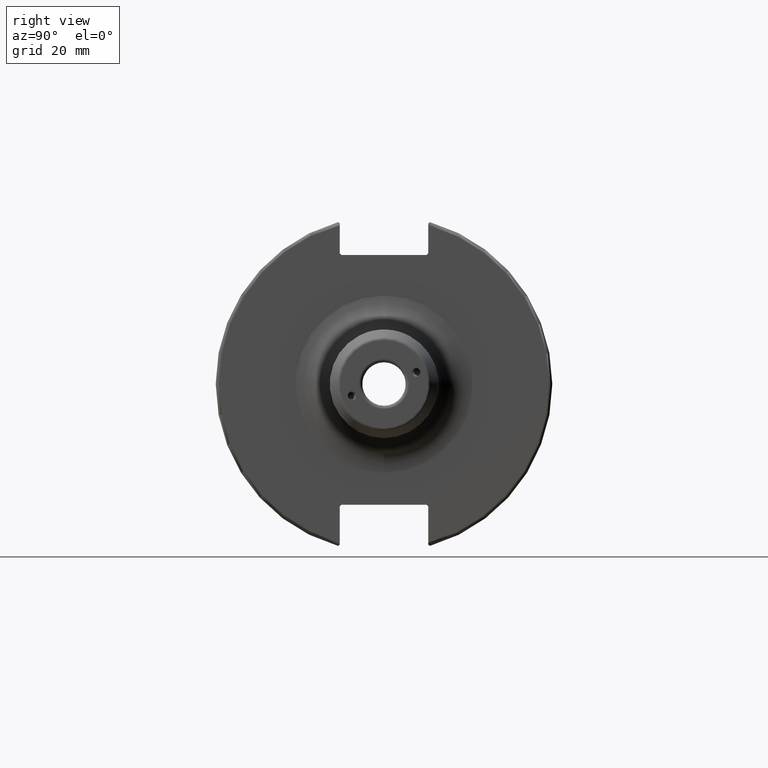
[diagram: clean part render]
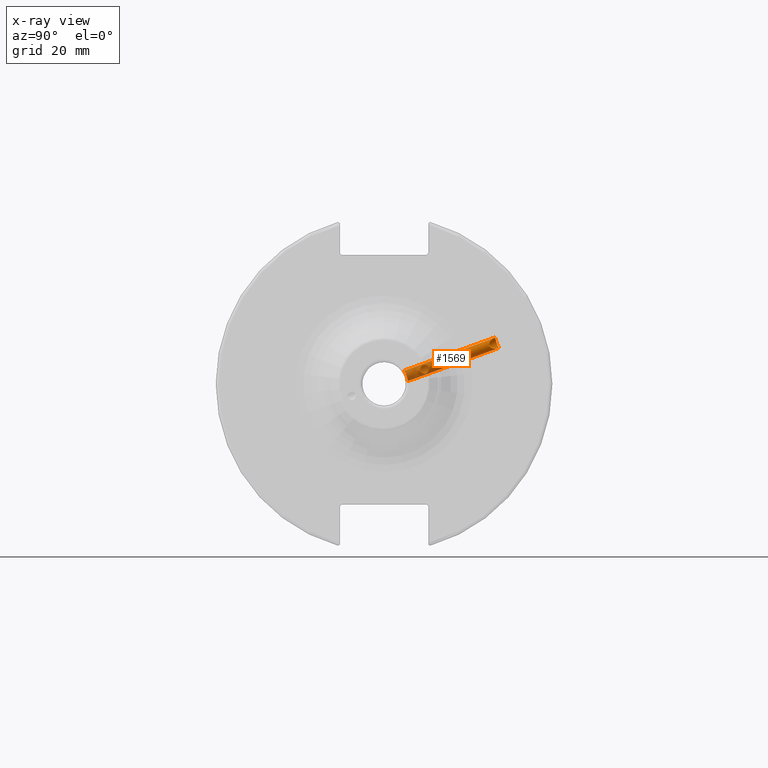
[diagram: x-ray — body ghosted, one internal face saturated and labeled with its STEP entity id]
A machine part, right view, then the same camera in x-ray: the body is ghosted and one INTERNAL B-rep face — a face not visible from any outside direction — is saturated and labeled: STEP entity #1569.
In plain terms, the highlighted cylindrical surface (bore or boss wall) has radius 1.621 mm, axis along (-0, 0.9397, 0.342).
Its self-contained STEP definition (entity closure, byte-faithful):
#68=FACE_BOUND('',#324,.T.);
#222=FACE_OUTER_BOUND('',#323,.T.);
#323=EDGE_LOOP('',(#1203,#1204,#1205,#1206,#1207,#1208));
#324=EDGE_LOOP('',(#1209,#1210));
#394=B_SPLINE_CURVE_WITH_KNOTS('',3,(#2313,#2314,#2315,#2316,#2317,#2318,
#2319,#2320,#2321,#2322,#2323,#2324,#2325,#2326,#2327,#2328,#2329,#2330,
#2331,#2332,#2333,#2334,#2335,#2336,#2337,#2338,#2339,#2340,#2341,#2342,
#2343,#2344),.UNSPECIFIED.,.F.,.F.,(4,2,2,2,2,2,2,2,2,2,2,2,2,2,2,4),(0.,
0.0251596441036339,0.0503192882072677,0.100638576414535,0.149541850116324,
0.198445123818113,0.247348397519902,0.296251671221691,0.346570959428959,
0.371730603532593,0.396890247636226,0.421301291589503,0.445712335542779,
0.494534423449331,0.543060034986694,0.549562323552133),.UNSPECIFIED.);
#395=B_SPLINE_CURVE_WITH_KNOTS('',3,(#2345,#2346,#2347,#2348,#2349,#2350,
#2351,#2352,#2353,#2354,#2355,#2356,#2357,#2358),.UNSPECIFIED.,.F.,.F.,
(4,2,2,2,2,2,4),(0.549562323552133,0.591585646524056,0.640111258061419,
0.688636869598782,0.737458957505335,0.761870001458611,0.786281045411887),
 .UNSPECIFIED.);
#403=B_SPLINE_CURVE_WITH_KNOTS('',3,(#2572,#2573,#2574,#2575,#2576,#2577,
#2578,#2579,#2580,#2581,#2582,#2583,#2584,#2585,#2586,#2587,#2588,#2589,
#2590,#2591,#2592,#2593,#2594,#2595,#2596,#2597),.UNSPECIFIED.,.F.,.F.,
(4,2,2,2,2,2,2,2,2,2,2,2,4),(0.,0.061304281095889,0.122608562191778,0.183906587521476,
0.245204612851173,0.306502638180871,0.367800663510569,0.429104944606458,
0.490409225702347,0.551713506798236,0.613017787894125,0.674315813223822,
0.73561383855352),.UNSPECIFIED.);
#404=B_SPLINE_CURVE_WITH_KNOTS('',3,(#2598,#2599,#2600,#2601,#2602,#2603,
#2604,#2605,#2606,#2607),.UNSPECIFIED.,.F.,.F.,(4,2,2,2,4),(0.73561383855352,
0.796911863883217,0.858209889212915,0.919514170308804,0.980818451404693),
 .UNSPECIFIED.);
#414=B_SPLINE_CURVE_WITH_KNOTS('',3,(#2844,#2845,#2846,#2847,#2848,#2849,
#2850,#2851,#2852,#2853,#2854,#2855,#2856,#2857,#2858,#2859,#2860,#2861,
#2862,#2863,#2864,#2865,#2866,#2867,#2868,#2869,#2870,#2871,#2872,#2873,
#2874,#2875),.UNSPECIFIED.,.F.,.F.,(4,2,2,2,2,2,2,2,2,2,2,2,2,2,2,4),(0.,
0.0884839677067702,0.17696793541354,0.264588928472713,0.29293468020263,
0.321280431932547,0.349626183662464,0.377971935392381,0.465592928451554,
0.554076896158325,0.642560863865095,0.674019283137882,0.705477702410668,
0.76839454095624,0.837532569122269,0.892424435682428),.UNSPECIFIED.);
#415=B_SPLINE_CURVE_WITH_KNOTS('',3,(#2876,#2877,#2878,#2879,#2880,#2881,
#2882,#2883,#2884,#2885,#2886,#2887),.UNSPECIFIED.,.F.,.F.,(4,2,2,2,2,4),
(0.892424435682428,0.947316302242586,1.01645433040861,1.07937116895419,
1.11082958822697,1.14228800749976),.UNSPECIFIED.);
#474=LINE('',#2888,#569);
#569=VECTOR('',#1998,1.621);
#637=VERTEX_POINT('',#2310);
#638=VERTEX_POINT('',#2312);
#676=VERTEX_POINT('',#2570);
#677=VERTEX_POINT('',#2571);
#709=VERTEX_POINT('',#2842);
#710=VERTEX_POINT('',#2843);
#800=EDGE_CURVE('',#638,#637,#394,.T.);
#801=EDGE_CURVE('',#637,#638,#395,.T.);
#851=EDGE_CURVE('',#676,#677,#403,.T.);
#852=EDGE_CURVE('',#677,#676,#404,.T.);
#895=EDGE_CURVE('',#709,#710,#414,.T.);
#896=EDGE_CURVE('',#710,#709,#415,.T.);
#897=EDGE_CURVE('',#710,#677,#474,.T.);
#1203=ORIENTED_EDGE('',*,*,#895,.F.);
#1204=ORIENTED_EDGE('',*,*,#896,.F.);
#1205=ORIENTED_EDGE('',*,*,#897,.T.);
#1206=ORIENTED_EDGE('',*,*,#852,.T.);
#1207=ORIENTED_EDGE('',*,*,#851,.T.);
#1208=ORIENTED_EDGE('',*,*,#897,.F.);
#1209=ORIENTED_EDGE('',*,*,#800,.T.);
#1210=ORIENTED_EDGE('',*,*,#801,.T.);
#1524=CYLINDRICAL_SURFACE('',#1720,1.621);
#1569=ADVANCED_FACE('',(#222,#68),#1524,.F.);
#1720=AXIS2_PLACEMENT_3D('',#2841,#1996,#1997);
#1996=DIRECTION('center_axis',(-1.20908356884163E-16,0.939692620785908,
0.342020143325669));
#1997=DIRECTION('ref_axis',(1.,1.28667985902711E-16,0.));
#1998=DIRECTION('',(1.20908356884163E-16,-0.939692620785908,-0.342020143325669));
#2310=CARTESIAN_POINT('',(12.6926426804209,13.1054129118305,4.32302047923765));
#2312=CARTESIAN_POINT('',(12.1833951675391,11.4789881191766,5.4864165661348));
#2313=CARTESIAN_POINT('Ctrl Pts',(12.1833951675391,11.4789881191766,5.4864165661348));
#2314=CARTESIAN_POINT('Ctrl Pts',(12.1833951675391,11.4001803461573,5.45773288252698));
#2315=CARTESIAN_POINT('Ctrl Pts',(12.1936495407831,11.3241920759448,5.42089749621573));
#2316=CARTESIAN_POINT('Ctrl Pts',(12.2305501779727,11.1816330081564,5.33360865827013));
#2317=CARTESIAN_POINT('Ctrl Pts',(12.257100432995,11.1150485808627,5.28313690743458));
#2318=CARTESIAN_POINT('Ctrl Pts',(12.3495246941775,10.9332006165284,5.11602321153735));
#2319=CARTESIAN_POINT('Ctrl Pts',(12.4273807839676,10.8359274779005,4.98261229617408));
#2320=CARTESIAN_POINT('Ctrl Pts',(12.5609915779876,10.7034092487923,4.71062468386266));
#2321=CARTESIAN_POINT('Ctrl Pts',(12.6277143759253,10.6573522638578,4.55232185627843));
#2322=CARTESIAN_POINT('Ctrl Pts',(12.7215495583808,10.6349227988543,4.223636044917));
#2323=CARTESIAN_POINT('Ctrl Pts',(12.748,10.6590060406769,4.05303351525254));
#2324=CARTESIAN_POINT('Ctrl Pts',(12.748,10.7705120718808,3.74667321238691));
#2325=CARTESIAN_POINT('Ctrl Pts',(12.7215495583808,10.8617244305598,3.60050368311074));
#2326=CARTESIAN_POINT('Ctrl Pts',(12.6277143759253,11.0901815646108,3.36313312598144));
#2327=CARTESIAN_POINT('Ctrl Pts',(12.5609915779876,11.2272183581361,3.2714709838359));
#2328=CARTESIAN_POINT('Ctrl Pts',(12.4273807839676,11.5035634783384,3.14829746055591));
#2329=CARTESIAN_POINT('Ctrl Pts',(12.3495246941775,11.6638339090415,3.10862473845582));
#2330=CARTESIAN_POINT('Ctrl Pts',(12.257100432995,11.910556144744,3.09749783866546));
#2331=CARTESIAN_POINT('Ctrl Pts',(12.2305501779727,11.9940053913468,3.10163387926584));
#2332=CARTESIAN_POINT('Ctrl Pts',(12.1936495407831,12.1593201565378,3.12640195243419));
#2333=CARTESIAN_POINT('Ctrl Pts',(12.1833951675391,12.2412078785952,3.14702872801443));
#2334=CARTESIAN_POINT('Ctrl Pts',(12.1833951675391,12.396478577843,3.20354264079435));
#2335=CARTESIAN_POINT('Ctrl Pts',(12.1931021580079,12.4703943478703,3.2391254064083));
#2336=CARTESIAN_POINT('Ctrl Pts',(12.2290648052071,12.6084150705021,3.32381131725579));
#2337=CARTESIAN_POINT('Ctrl Pts',(12.2552340200219,12.6725362834397,3.37292464667575));
#2338=CARTESIAN_POINT('Ctrl Pts',(12.3470089699039,12.8460143221998,3.53591497173777));
#2339=CARTESIAN_POINT('Ctrl Pts',(12.4250850901645,12.9365110322343,3.66669177985174));
#2340=CARTESIAN_POINT('Ctrl Pts',(12.560053892631,13.0580294886042,3.9356006125653));
#2341=CARTESIAN_POINT('Ctrl Pts',(12.6276355578394,13.097935115939,4.09346194057976));
#2342=CARTESIAN_POINT('Ctrl Pts',(12.6810879577577,13.1053816403856,4.27894173318466));
#2343=CARTESIAN_POINT('Ctrl Pts',(12.6870556840373,13.1056880557782,4.30095749748075));
#2344=CARTESIAN_POINT('Ctrl Pts',(12.692642680421,13.1054129118305,4.32302047924113));
#2345=CARTESIAN_POINT('Ctrl Pts',(12.692642680421,13.1054129118305,4.32302047924113));
#2346=CARTESIAN_POINT('Ctrl Pts',(12.728750606286,13.1036346974587,4.46561024573782));
#2347=CARTESIAN_POINT('Ctrl Pts',(12.748,13.0765437062098,4.6104050553671));
#2348=CARTESIAN_POINT('Ctrl Pts',(12.748,12.9733118410137,4.89403227396178));
#2349=CARTESIAN_POINT('Ctrl Pts',(12.7219081137367,12.8851600204774,5.04126568251019));
#2350=CARTESIAN_POINT('Ctrl Pts',(12.6276355578394,12.6648270280261,5.28341663230366));
#2351=CARTESIAN_POINT('Ctrl Pts',(12.560053892631,12.5327862382607,5.37869458260495));
#2352=CARTESIAN_POINT('Ctrl Pts',(12.4250850901645,12.2668464342186,5.506580141508));
#2353=CARTESIAN_POINT('Ctrl Pts',(12.3470089699039,12.1134602204862,5.54859082472498));
#2354=CARTESIAN_POINT('Ctrl Pts',(12.2552340200219,11.8758001714421,5.56193912365313));
#2355=CARTESIAN_POINT('Ctrl Pts',(12.2290648052071,11.7951110329636,5.55834579554401));
#2356=CARTESIAN_POINT('Ctrl Pts',(12.1931021580079,11.6349459711485,5.53450095657151));
#2357=CARTESIAN_POINT('Ctrl Pts',(12.1833951675391,11.5554510454052,5.5142467953069));
#2358=CARTESIAN_POINT('Ctrl Pts',(12.1833951675391,11.4789881191766,5.4864165661348));
#2570=CARTESIAN_POINT('',(11.127,6.95346328967804,0.805821493322101));
#2571=CARTESIAN_POINT('',(9.50600000000001,6.57784834550136,2.39414100327968));
#2572=CARTESIAN_POINT('Ctrl Pts',(11.127,6.95346328967804,0.805821493322101));
#2573=CARTESIAN_POINT('Ctrl Pts',(11.331347603653,6.95346328967804,0.8058214933221));
#2574=CARTESIAN_POINT('Ctrl Pts',(11.5487858559344,6.9489856151589,0.847813764950008));
#2575=CARTESIAN_POINT('Ctrl Pts',(11.947933227138,6.92641118197014,1.01588248772159));
#2576=CARTESIAN_POINT('Ctrl Pts',(12.1297096133175,6.9077940068322,1.14172879648063));
#2577=CARTESIAN_POINT('Ctrl Pts',(12.4167159268308,6.85439814147701,1.42772003025957));
#2578=CARTESIAN_POINT('Ctrl Pts',(12.5413516639509,6.81594760192237,1.60717410893748));
#2579=CARTESIAN_POINT('Ctrl Pts',(12.7070138416802,6.71285124761748,1.9944368762592));
#2580=CARTESIAN_POINT('Ctrl Pts',(12.748,6.64773221019751,2.2021366630428));
#2581=CARTESIAN_POINT('Ctrl Pts',(12.748,6.50796448080521,2.58614534351656));
#2582=CARTESIAN_POINT('Ctrl Pts',(12.7070138416802,6.42434170808301,2.7871103214274));
#2583=CARTESIAN_POINT('Ctrl Pts',(12.5413516639509,6.25439038887677,3.15003987151212));
#2584=CARTESIAN_POINT('Ctrl Pts',(12.4167159268308,6.16849435275566,3.31222520168986));
#2585=CARTESIAN_POINT('Ctrl Pts',(12.1297096133175,6.02556633714446,3.56562939776576));
#2586=CARTESIAN_POINT('Ctrl Pts',(11.947933227138,5.95893547271036,3.67400015278369));
#2587=CARTESIAN_POINT('Ctrl Pts',(11.5487858559344,5.86819599923775,3.8172588298744));
#2588=CARTESIAN_POINT('Ctrl Pts',(11.331347603653,5.84463398501622,3.85230496991002));
#2589=CARTESIAN_POINT('Ctrl Pts',(10.922652396347,5.84463398501622,3.85230496991001));
#2590=CARTESIAN_POINT('Ctrl Pts',(10.7052141440656,5.86819599923775,3.8172588298744));
#2591=CARTESIAN_POINT('Ctrl Pts',(10.306066772862,5.95893547271036,3.67400015278369));
#2592=CARTESIAN_POINT('Ctrl Pts',(10.1242903866825,6.02556633714446,3.56562939776576));
#2593=CARTESIAN_POINT('Ctrl Pts',(9.83728407316922,6.16849435275567,3.31222520168986));
#2594=CARTESIAN_POINT('Ctrl Pts',(9.71264833604907,6.25439038887677,3.15003987151212));
#2595=CARTESIAN_POINT('Ctrl Pts',(9.54698615831983,6.42434170808301,2.78711032142741));
#2596=CARTESIAN_POINT('Ctrl Pts',(9.50600000000001,6.50796448080521,2.58614534351656));
#2597=CARTESIAN_POINT('Ctrl Pts',(9.50600000000001,6.57784834550136,2.39414100327968));
#2598=CARTESIAN_POINT('Ctrl Pts',(9.50600000000001,6.57784834550136,2.39414100327968));
#2599=CARTESIAN_POINT('Ctrl Pts',(9.50600000000001,6.6477322101975,2.2021366630428));
#2600=CARTESIAN_POINT('Ctrl Pts',(9.54698615831983,6.71285124761748,1.9944368762592));
#2601=CARTESIAN_POINT('Ctrl Pts',(9.71264833604907,6.81594760192237,1.60717410893749));
#2602=CARTESIAN_POINT('Ctrl Pts',(9.83728407316922,6.85439814147701,1.42772003025958));
#2603=CARTESIAN_POINT('Ctrl Pts',(10.1242903866825,6.9077940068322,1.14172879648064));
#2604=CARTESIAN_POINT('Ctrl Pts',(10.306066772862,6.92641118197014,1.0158824877216));
#2605=CARTESIAN_POINT('Ctrl Pts',(10.7052141440656,6.9489856151589,0.847813764950011));
#2606=CARTESIAN_POINT('Ctrl Pts',(10.922652396347,6.95346328967804,0.805821493322102));
#2607=CARTESIAN_POINT('Ctrl Pts',(11.127,6.95346328967804,0.805821493322101));
#2841=CARTESIAN_POINT('Origin',(11.127,21.5598376450015,7.84713915839248));
#2842=CARTESIAN_POINT('',(11.127,33.3180066739614,10.4017305252212));
#2843=CARTESIAN_POINT('',(9.506,32.9302546125277,11.9856324857674));
#2844=CARTESIAN_POINT('Ctrl Pts',(11.127,33.3180066739614,10.4017305252212));
#2845=CARTESIAN_POINT('Ctrl Pts',(11.3686060767793,33.1590347421905,10.3438694739727));
#2846=CARTESIAN_POINT('Ctrl Pts',(11.5793820284691,32.9265222260495,10.3130739191917));
#2847=CARTESIAN_POINT('Ctrl Pts',(11.9610018879898,32.4227535856658,10.3052665038932));
#2848=CARTESIAN_POINT('Ctrl Pts',(12.1308400889368,32.1507028147897,10.3305992558997));
#2849=CARTESIAN_POINT('Ctrl Pts',(12.4142114787667,31.6507121188742,10.450175059589));
#2850=CARTESIAN_POINT('Ctrl Pts',(12.5624213105869,31.3550631351684,10.5662118597017));
#2851=CARTESIAN_POINT('Ctrl Pts',(12.6780350131118,31.0691918693162,10.7993137473042));
#2852=CARTESIAN_POINT('Ctrl Pts',(12.7040094113745,30.9979746661842,10.8699279351394));
#2853=CARTESIAN_POINT('Ctrl Pts',(12.7390906022264,30.8779301513201,11.0303555632259));
#2854=CARTESIAN_POINT('Ctrl Pts',(12.748,30.8293999774207,11.1204342022846));
#2855=CARTESIAN_POINT('Ctrl Pts',(12.748,30.7647678569584,11.2980094938262));
#2856=CARTESIAN_POINT('Ctrl Pts',(12.7390906022264,30.7440426939133,11.3982083291993));
#2857=CARTESIAN_POINT('Ctrl Pts',(12.7040094113745,30.7328812358665,11.5982661489831));
#2858=CARTESIAN_POINT('Ctrl Pts',(12.6780350131118,30.7420468535717,11.6981372909494));
#2859=CARTESIAN_POINT('Ctrl Pts',(12.5624213105869,30.8112019430797,12.0604582042831));
#2860=CARTESIAN_POINT('Ctrl Pts',(12.4142114787667,30.9630951867812,12.3393870537492));
#2861=CARTESIAN_POINT('Ctrl Pts',(12.1308400889368,31.2692484359686,12.7523752579899));
#2862=CARTESIAN_POINT('Ctrl Pts',(11.9610018879898,31.4613678381355,12.9466521366183));
#2863=CARTESIAN_POINT('Ctrl Pts',(11.5793820284691,31.8522955155365,13.264487549701));
#2864=CARTESIAN_POINT('Ctrl Pts',(11.3686060767793,32.0502054375286,13.3903529505607));
#2865=CARTESIAN_POINT('Ctrl Pts',(11.0411025718087,32.2656961467896,13.4687851544926));
#2866=CARTESIAN_POINT('Ctrl Pts',(10.9475197272613,32.319337112024,13.4809373024586));
#2867=CARTESIAN_POINT('Ctrl Pts',(10.7524056152646,32.4120347916018,13.478660481775));
#2868=CARTESIAN_POINT('Ctrl Pts',(10.6508468329885,32.4510290142907,13.4640493136015));
#2869=CARTESIAN_POINT('Ctrl Pts',(10.3515687330207,32.5462208483495,13.3776426663642));
#2870=CARTESIAN_POINT('Ctrl Pts',(10.1588386735598,32.5827431071443,13.2604924449868));
#2871=CARTESIAN_POINT('Ctrl Pts',(9.84134561894807,32.655830196381,12.9644900573906));
#2872=CARTESIAN_POINT('Ctrl Pts',(9.69002806088231,32.7033162128217,12.737930692361));
#2873=CARTESIAN_POINT('Ctrl Pts',(9.54526126545399,32.8036762615874,12.3639022622834));
#2874=CARTESIAN_POINT('Ctrl Pts',(9.506,32.8676741989667,12.1575707589266));
#2875=CARTESIAN_POINT('Ctrl Pts',(9.506,32.9302546125277,11.9856324857674));
#2876=CARTESIAN_POINT('Ctrl Pts',(9.506,32.9302546125277,11.9856324857674));
#2877=CARTESIAN_POINT('Ctrl Pts',(9.506,32.9928350260888,11.8136942126083));
#2878=CARTESIAN_POINT('Ctrl Pts',(9.54526126545399,33.0764370956341,11.6144980298285));
#2879=CARTESIAN_POINT('Ctrl Pts',(9.69002806088231,33.2399776784904,11.2634654335448));
#2880=CARTESIAN_POINT('Ctrl Pts',(9.84134561894807,33.3492308321696,11.0593874679259));
#2881=CARTESIAN_POINT('Ctrl Pts',(10.1588386735598,33.4835095407806,10.7856570083685));
#2882=CARTESIAN_POINT('Ctrl Pts',(10.3515687330207,33.5308345781541,10.6724386768412));
#2883=CARTESIAN_POINT('Ctrl Pts',(10.6508468329885,33.5134545248817,10.5450592134001));
#2884=CARTESIAN_POINT('Ctrl Pts',(10.7524056152646,33.4929750951421,10.5088014060196));
#2885=CARTESIAN_POINT('Ctrl Pts',(10.9475197272613,33.4234280649364,10.4474723403076));
#2886=CARTESIAN_POINT('Ctrl Pts',(11.0411025718087,33.3745254514514,10.4223016779046));
#2887=CARTESIAN_POINT('Ctrl Pts',(11.127,33.3180066739614,10.4017305252212));
#2888=CARTESIAN_POINT('',(9.506,21.5598376450015,7.84713915839248));